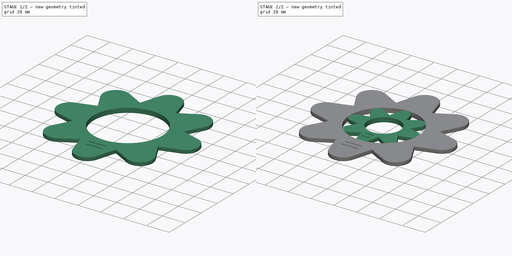
[diagram: build sequence overview — one tinted view per stage of 2, left to right]
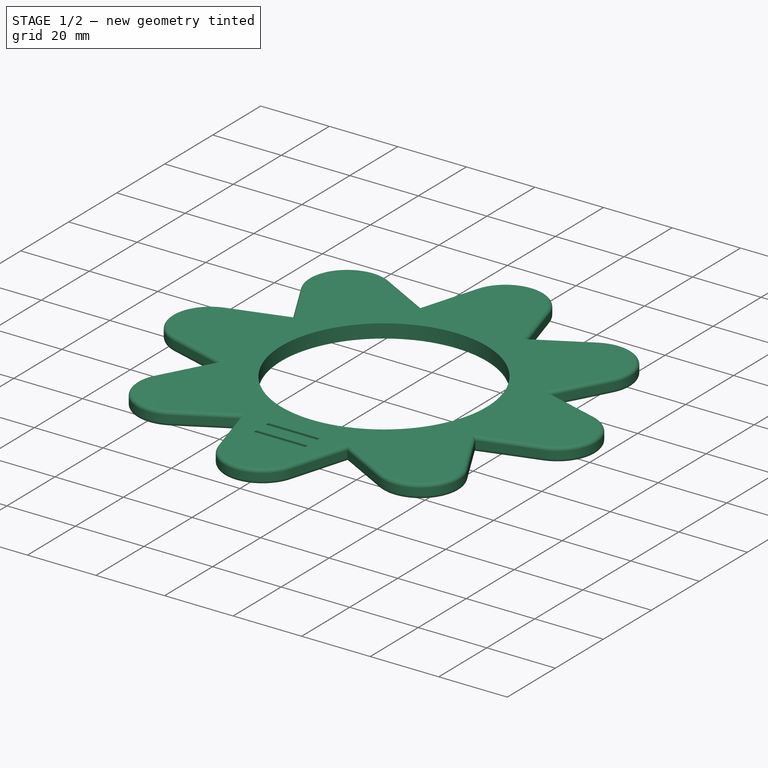
[diagram: stage 1 of 2 — iso view after this stage's code; geometry added in this stage tinted green]
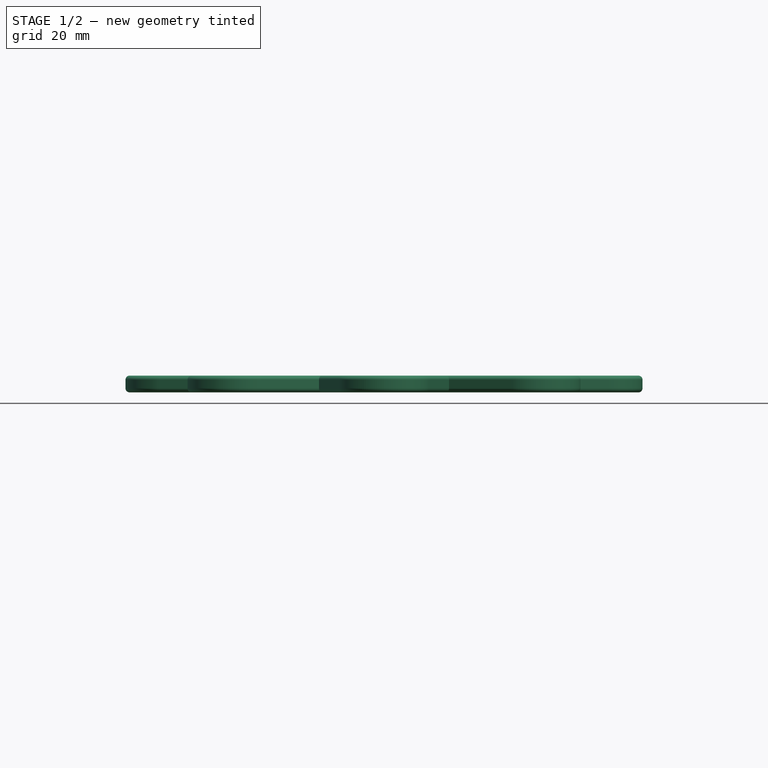
[diagram: stage 1 of 2 — front view after this stage's code; geometry added in this stage tinted green]
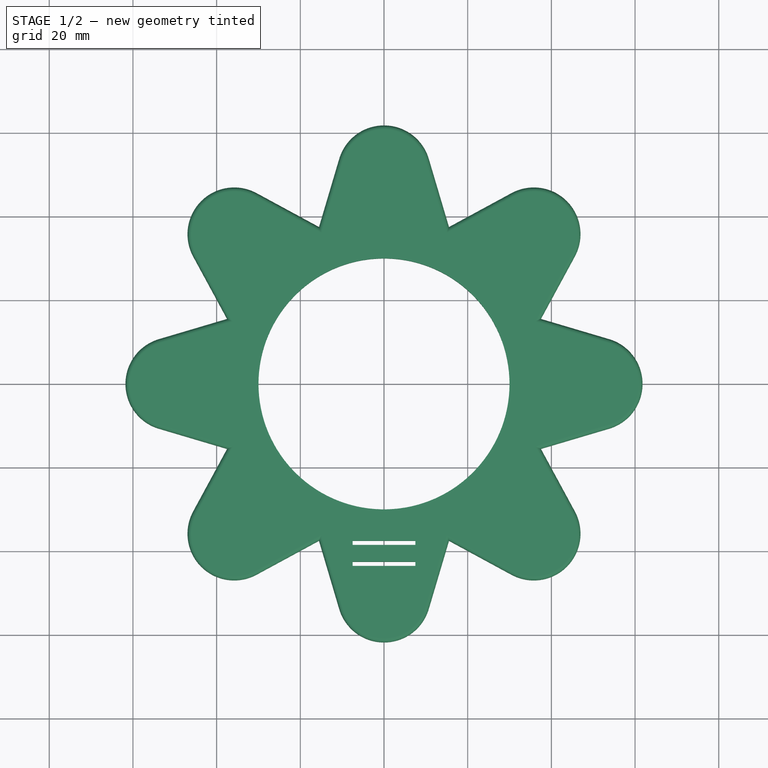
[diagram: stage 1 of 2 — top view after this stage's code; geometry added in this stage tinted green]
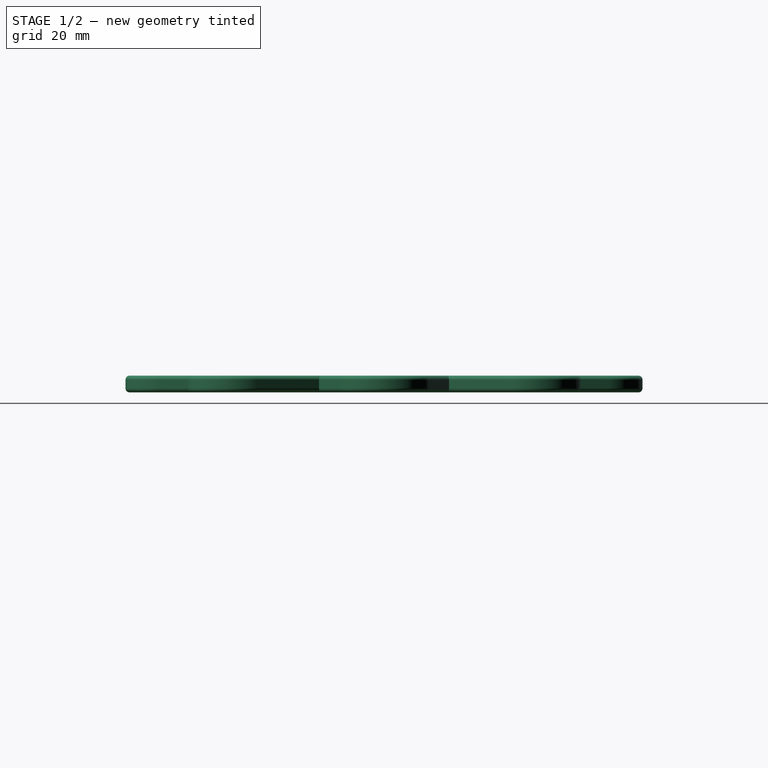
[diagram: stage 1 of 2 — right view after this stage's code; geometry added in this stage tinted green]
FCSTD DOCUMENT  (FreeCAD 0.21R33771 (Git))
Label: BowMaker
License: All rights reserved
LicenseURL: https://en.wikipedia.org/wiki/All_rights_reserved
objects: Sketcher::SketchObject×2, PartDesign::Pad×2, PartDesign::Fillet×2, PartDesign::Body×2
note: 12 computed .brp shape members not serialized (recipe doc carries the construction recipe); baked Part::Feature solids carry a one-line shape summary decoded from their .brp

FEATURE [PartDesign::Body] Body  label="BowMaker_7mm"
  Group = -> [Sketch,Pad,Fillet]
  Origin = -> Origin
  Tip = -> Fillet
FEATURE [Sketcher::SketchObject] Sketch001
  FullyConstrained = true
  MapMode = 5
  Support = -> [XY_Plane001]
  expr: Constraints[137] = .Constraints.PaperSize + 2 mm
  expr: Constraints[140] = .Constraints.PaperSize / 2
  expr: Constraints[150] = .Constraints.PaperSize * 4
  sketch-geometry (61):
    g0: LineSegment StartX=-7.5 StartY=-38.5 StartZ=0 EndX=7.5 EndY=-38.5 EndZ=0
    g1: LineSegment StartX=7.5 StartY=-38.5 StartZ=0 EndX=7.5 EndY=-37.5 EndZ=0
    g2: LineSegment StartX=7.5 StartY=-37.5 StartZ=0 EndX=-7.5 EndY=-37.5 EndZ=0
    g3: LineSegment StartX=-7.5 StartY=-37.5 StartZ=0 EndX=-7.5 EndY=-38.5 EndZ=0
    g4: LineSegment StartX=-7.5 StartY=-42.5 StartZ=0 EndX=7.5 EndY=-42.5 EndZ=0
    g5: LineSegment StartX=7.5 StartY=-42.5 StartZ=0 EndX=7.5 EndY=-43.5 EndZ=0
    g6: LineSegment StartX=7.5 StartY=-43.5 StartZ=0 EndX=-7.5 EndY=-43.5 EndZ=0
    g7: LineSegment StartX=-7.5 StartY=-43.5 StartZ=0 EndX=-7.5 EndY=-42.5 EndZ=0
    g8: LineSegment StartX=15.533 StartY=37.5 StartZ=0 EndX=-15.533 EndY=37.5 EndZ=0
    g9: LineSegment StartX=-15.533 StartY=37.5 StartZ=0 EndX=-37.5 EndY=15.533 EndZ=0
    g10: LineSegment StartX=-37.5 StartY=15.533 StartZ=0 EndX=-37.5 EndY=-15.533 EndZ=0
    g11: LineSegment StartX=-37.5 StartY=-15.533 StartZ=0 EndX=-15.533 EndY=-37.5 EndZ=0
    g12: LineSegment StartX=-15.533 StartY=-37.5 StartZ=0 EndX=15.533 EndY=-37.5 EndZ=0
    g13: LineSegment StartX=15.533 StartY=-37.5 StartZ=0 EndX=37.5 EndY=-15.533 EndZ=0
    g14: LineSegment StartX=37.5 StartY=-15.533 StartZ=0 EndX=37.5 EndY=15.533 EndZ=0
    g15: LineSegment StartX=37.5 StartY=15.533 StartZ=0 EndX=15.533 EndY=37.5 EndZ=0
    g16: Circle CenterX=0 CenterY=0 CenterZ=0 NormalX=0 NormalY=0 NormalZ=1 AngleXU=0 Radius=40.5897
    g17: GeomPoint X=37.5 Y=0 Z=0
    g18: LineSegment StartX=53.7989 StartY=-10.7013 StartZ=0 EndX=53.7989 EndY=10.7013 EndZ=0
    g19: LineSegment StartX=53.7989 StartY=10.7013 StartZ=0 EndX=45.6085 EndY=30.4746 EndZ=0
    g20: LineSegment StartX=45.6085 StartY=30.4746 StartZ=0 EndX=30.4746 EndY=45.6085 EndZ=0
    g21: LineSegment StartX=30.4746 StartY=45.6085 StartZ=0 EndX=10.7013 EndY=53.7989 EndZ=0
    g22: LineSegment StartX=10.7013 StartY=53.7989 StartZ=0 EndX=-10.7013 EndY=53.7989 EndZ=0
    g23: LineSegment StartX=-10.7013 StartY=53.7989 StartZ=0 EndX=-30.4746 EndY=45.6085 EndZ=0
    g24: LineSegment StartX=-30.4746 StartY=45.6085 StartZ=0 EndX=-45.6085 EndY=30.4746 EndZ=0
    g25: LineSegment StartX=-45.6085 StartY=30.4746 StartZ=0 EndX=-53.7989 EndY=10.7013 EndZ=0
    g26: LineSegment StartX=-53.7989 StartY=10.7013 StartZ=0 EndX=-53.7989 EndY=-10.7013 EndZ=0
    g27: LineSegment StartX=-53.7989 StartY=-10.7013 StartZ=0 EndX=-45.6085 EndY=-30.4746 EndZ=0
    g28: LineSegment StartX=-45.6085 StartY=-30.4746 StartZ=0 EndX=-30.4746 EndY=-45.6085 EndZ=0
    g29: LineSegment StartX=-30.4746 StartY=-45.6085 StartZ=0 EndX=-10.7013 EndY=-53.7989 EndZ=0
    g30: LineSegment StartX=-10.7013 StartY=-53.7989 StartZ=0 EndX=10.7013 EndY=-53.7989 EndZ=0
    g31: LineSegment StartX=10.7013 StartY=-53.7989 StartZ=0 EndX=30.4746 EndY=-45.6085 EndZ=0
    g32: LineSegment StartX=30.4746 StartY=-45.6085 StartZ=0 EndX=45.6085 EndY=-30.4746 EndZ=0
    g33: LineSegment StartX=45.6085 StartY=-30.4746 StartZ=0 EndX=53.7989 EndY=-10.7013 EndZ=0
    g34: Circle CenterX=0 CenterY=0 CenterZ=0 NormalX=0 NormalY=0 NormalZ=1 AngleXU=0 Radius=54.8529
    g35: ArcOfCircle CenterX=35.7984 CenterY=35.7984 CenterZ=0 NormalX=0 NormalY=0 NormalZ=1 AngleXU=0 Radius=11.1616 StartAngle=5.78598 EndAngle=8.35119
    g36: ArcOfCircle CenterX=50.6266 CenterY=1.8e-15 CenterZ=0 NormalX=0 NormalY=0 NormalZ=1 AngleXU=0 Radius=11.1616 StartAngle=5.00058 EndAngle=7.56579
    g37: ArcOfCircle CenterX=35.7984 CenterY=-35.7984 CenterZ=0 NormalX=0 NormalY=0 NormalZ=1 AngleXU=0 Radius=11.1616 StartAngle=4.21518 EndAngle=6.78039
    g38: ArcOfCircle CenterX=-1.4e-15 CenterY=-50.6266 CenterZ=0 NormalX=0 NormalY=0 NormalZ=1 AngleXU=0 Radius=11.1616 StartAngle=3.42979 EndAngle=5.99499
    g39: ArcOfCircle CenterX=-35.7984 CenterY=-35.7984 CenterZ=0 NormalX=0 NormalY=0 NormalZ=1 AngleXU=0 Radius=11.1616 StartAngle=2.64439 EndAngle=5.20959
    g40: ArcOfCircle CenterX=-50.6266 CenterY=-1.13e-14 CenterZ=0 NormalX=0 NormalY=0 NormalZ=1 AngleXU=0 Radius=11.1616 StartAngle=1.85899 EndAngle=4.4242
    g41: ArcOfCircle CenterX=-35.7984 CenterY=35.7984 CenterZ=0 NormalX=0 NormalY=0 NormalZ=1 AngleXU=0 Radius=11.1616 StartAngle=1.07359 EndAngle=3.6388
    g42: ArcOfCircle CenterX=-6.2e-15 CenterY=50.6266 CenterZ=0 NormalX=0 NormalY=0 NormalZ=1 AngleXU=0 Radius=11.1616 StartAngle=0.288193 EndAngle=2.8534
    g43: LineSegment StartX=37.5 StartY=15.533 StartZ=0 EndX=53.7989 EndY=10.7013 EndZ=0
    g44: LineSegment StartX=53.7989 StartY=-10.7013 StartZ=0 EndX=37.5 EndY=-15.533 EndZ=0
    g45: LineSegment StartX=37.5 StartY=-15.533 StartZ=0 EndX=45.6085 EndY=-30.4746 EndZ=0
    g46: LineSegment StartX=30.4746 StartY=-45.6085 StartZ=0 EndX=15.533 EndY=-37.5 EndZ=0
    g47: LineSegment StartX=15.533 StartY=-37.5 StartZ=0 EndX=10.7013 EndY=-53.7989 EndZ=0
    g48: LineSegment StartX=-10.7013 StartY=-53.7989 StartZ=0 EndX=-15.533 EndY=-37.5 EndZ=0
    g49: LineSegment StartX=-15.533 StartY=-37.5 StartZ=0 EndX=-30.4746 EndY=-45.6085 EndZ=0
    g50: LineSegment StartX=-45.6085 StartY=-30.4746 StartZ=0 EndX=-37.5 EndY=-15.533 EndZ=0
    g51: LineSegment StartX=-37.5 StartY=-15.533 StartZ=0 EndX=-53.7989 EndY=-10.7013 EndZ=0
    g52: LineSegment StartX=-53.7989 StartY=10.7013 StartZ=0 EndX=-37.5 EndY=15.533 EndZ=0
    g53: LineSegment StartX=-37.5 StartY=15.533 StartZ=0 EndX=-45.6085 EndY=30.4746 EndZ=0
    g54: LineSegment StartX=-30.4746 StartY=45.6085 StartZ=0 EndX=-15.533 EndY=37.5 EndZ=0
    g55: LineSegment StartX=-10.7013 StartY=53.7989 StartZ=0 EndX=-15.533 EndY=37.5 EndZ=0
    g56: LineSegment StartX=10.7013 StartY=53.7989 StartZ=0 EndX=15.533 EndY=37.5 EndZ=0
    g57: LineSegment StartX=15.533 StartY=37.5 StartZ=0 EndX=30.4746 EndY=45.6085 EndZ=0
    g58: LineSegment StartX=45.6085 StartY=30.4746 StartZ=0 EndX=37.5 EndY=15.533 EndZ=0
    g59: Circle CenterX=0 CenterY=0 CenterZ=0 NormalX=0 NormalY=0 NormalZ=1 AngleXU=0 Radius=30
    g60: GeomPoint X=0 Y=-30 Z=0
  constraints (131):
    c: Coincident(g0,g1)
    c: Coincident(g1,g2)
    c: Coincident(g2,g3)
    c: Coincident(g3,g0)
    c: Horizontal(g2)
    c: Vertical(g1)
    c: Vertical(g3)
    c: Coincident(g4,g5)
    c: Coincident(g5,g6)
    c: Coincident(g6,g7)
    c: Coincident(g7,g4)
    c: Horizontal(g4)
    c: Horizontal(g6)
    c: Vertical(g5)
    c: Vertical(g7)
    c: Vertical(g4,g1)
    c: Symmetric(g0,g0,g-2)
    c: Vertical(g4,g2)
    c: Equal(g7,g3)
    c: DistanceY(g5,g4) = 1
    c: DistanceX(g0,g0) = 15  'PaperSize'
    c: Coincident(g8,g9)
    c: Coincident(g9,g10)
    c: Coincident(g10,g11)
    c: Coincident(g11,g12)
    c: Coincident(g12,g13)
    c: Coincident(g13,g14)
    c: Coincident(g14,g15)
    c: Coincident(g15,g8)
    c: Equal(g8, g9-g15) x7
    c: PointOnObject(g8,g16)
    c: PointOnObject(g9,g16)
    c: PointOnObject(g10,g16)
    c: PointOnObject(g11,g16)
    c: PointOnObject(g12,g16)
    c: PointOnObject(g13,g16)
    c: PointOnObject(g14,g16)
    c: PointOnObject(g15,g16)
    c: Symmetric(g13,g14,g17)
    c: PointOnObject(g17,g-1)
    c: Coincident(g16,g-1)
    c: Coincident(g18,g19)
    c: Coincident(g19,g20)
    c: Coincident(g20,g21)
    c: Coincident(g21,g22)
    c: Coincident(g22,g23)
    c: Coincident(g23,g24)
    c: Coincident(g24,g25)
    c: Coincident(g25,g26)
    c: Coincident(g26,g27)
    c: Coincident(g27,g28)
    c: Coincident(g28,g29)
    c: Coincident(g29,g30)
    c: Coincident(g30,g31)
    c: Coincident(g31,g32)
    c: Coincident(g32,g33)
    c: Coincident(g33,g18)
    c: Equal(g18, g19-g33) x15
    c: PointOnObject(g18,g34)
    c: PointOnObject(g19,g34)
    c: PointOnObject(g20,g34)
    c: PointOnObject(g21,g34)
    c: PointOnObject(g22,g34)
    c: PointOnObject(g23,g34)
    c: PointOnObject(g24,g34)
    c: PointOnObject(g25,g34)
    c: PointOnObject(g26,g34)
    c: PointOnObject(g29,g34)
    c: PointOnObject(g30,g34)
    c: PointOnObject(g31,g34)
    c: PointOnObject(g32,g34)
    c: PointOnObject(g33,g34)
    c: Coincident(g34,g16)
    c: Coincident(g35,g20)
    c: Coincident(g35,g19)
    c: Coincident(g36,g18)
    c: Coincident(g36,g18)
    c: Coincident(g37,g32)
    c: Coincident(g37,g31)
    c: Coincident(g38,g30)
    c: Coincident(g38,g29)
    c: Coincident(g39,g28)
    c: Coincident(g39,g27)
    c: Coincident(g40,g26)
    c: Coincident(g40,g25)
    c: Coincident(g41,g24)
    c: Coincident(g41,g23)
    c: Coincident(g42,g22)
    c: Coincident(g42,g21)
    c: Equal(g36,g37)
    c: Equal(g37,g38)
    c: Coincident(g43,g14)
    c: Coincident(g43,g36)
    c: Coincident(g44,g36)
    c: Coincident(g44,g13)
    c: Coincident(g45,g44)
    c: Coincident(g45,g37)
    c: Coincident(g46,g37)
    c: Coincident(g46,g12)
    c: Coincident(g47,g46)
    c: Coincident(g48,g11)
    c: Coincident(g49,g48)
    c: Coincident(g50,g10)
    c: Coincident(g51,g10)
    c: Coincident(g52,g40)
    c: Coincident(g52,g9)
    c: Coincident(g53,g52)
    c: Coincident(g54,g8)
    c: Coincident(g55,g54)
    c: Coincident(g56,g42)
    c: Coincident(g56,g8)
    c: Coincident(g57,g56)
    c: Coincident(g58,g35)
    c: Coincident(g58,g43)
    c: Tangent(g48,g38) = 1.5708
    c: Tangent(g47,g38) = 1.5708
    c: Coincident(g59,g16)
    c: Distance(g38,g48) = 17
    c: PointOnObject(g60,g-2)
    c: PointOnObject(g60,g59)
    c: DistanceY(g1,g60) = 7.5
    c: PointOnObject(g2,g12)
    c: DistanceY(g4,g0) = 4
    c: Tangent(g49,g39) = 1.5708
    c: Tangent(g50,g39) = 1.5708
    c: Tangent(g53,g41) = 1.5708
    c: Tangent(g54,g41) = 1.5708
    c: Tangent(g51,g40) = 1.5708
    c: Tangent(g55,g42) = -1.5708
    c: Tangent(g57,g35) = 1.5708
    c: Diameter(g59) = 60
FEATURE [PartDesign::Pad] Pad001
  Direction = (0,0,1)
  Length = 4
  Length2 = 10
  Profile = -> Sketch001
  ReferenceAxis = -> Sketch001 [N_Axis]
  Type = 0
FEATURE [PartDesign::Fillet] Fillet001
  Base = -> Pad001 [Edge49,Edge46,Edge43,Edge40,Edge37,Edge34,Edge31,Edge28,Edge25,Edge22,Edge19,Edge16,Edge13,Edge10,Edge7,Edge4,Edge72,Edge70,Edge67,Edge64,Edge61,Edge58,Edge55,Edge52,Edge21,Edge24,Edge27,Edge30,Edge33,Edge36,Edge39,Edge42,Edge45,Edge48,Edge51,Edge54,Edge57,Edge60,Edge63,Edge66,+8 more]
  BaseFeature = -> Pad001
  Radius = 1
  SupportTransform = false
  UseAllEdges = false
FEATURE [PartDesign::Body] Body001  label="BowMaker_15mm"
  Group = -> [Sketch001,Pad001,Fillet001]
  Origin = -> Origin001
  Tip = -> Fillet001
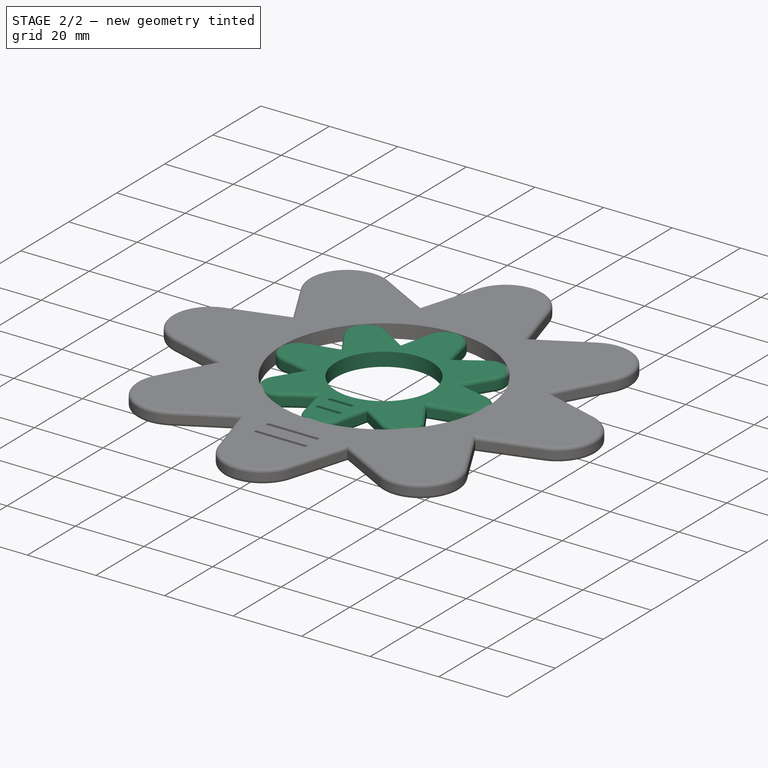
[diagram: stage 2 of 2 — iso view after this stage's code; geometry added in this stage tinted green]
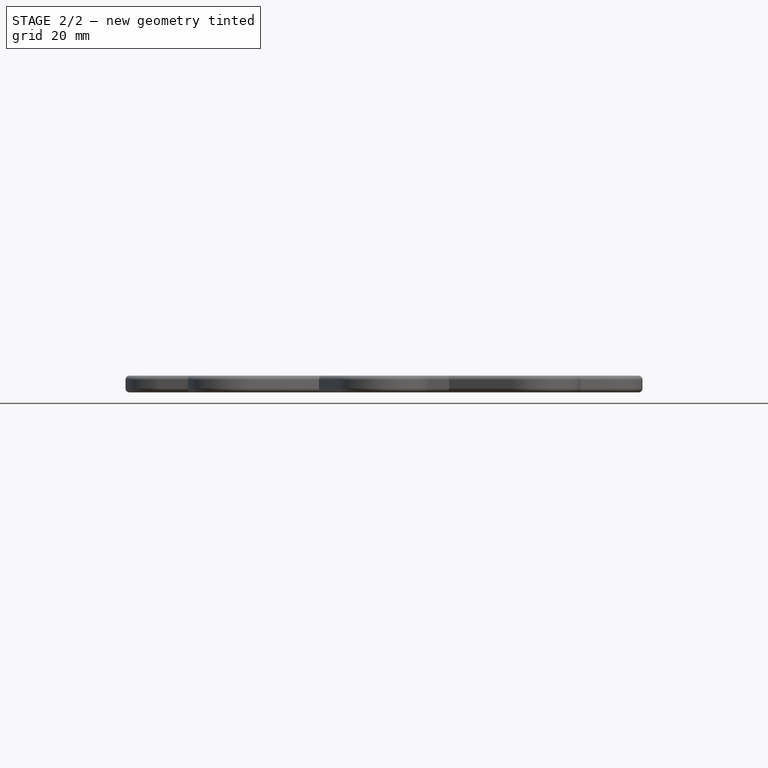
[diagram: stage 2 of 2 — front view after this stage's code; geometry added in this stage tinted green]
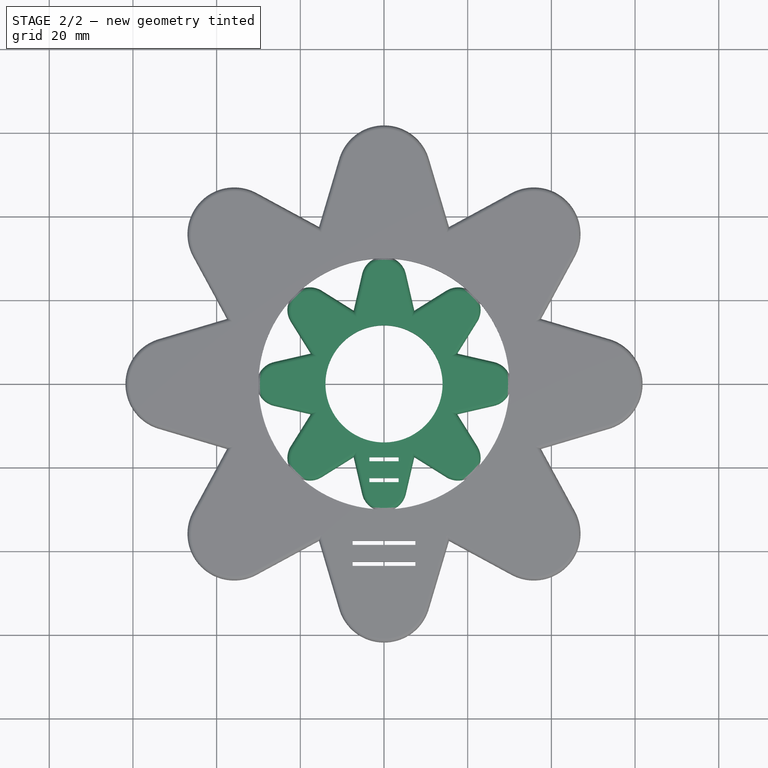
[diagram: stage 2 of 2 — top view after this stage's code; geometry added in this stage tinted green]
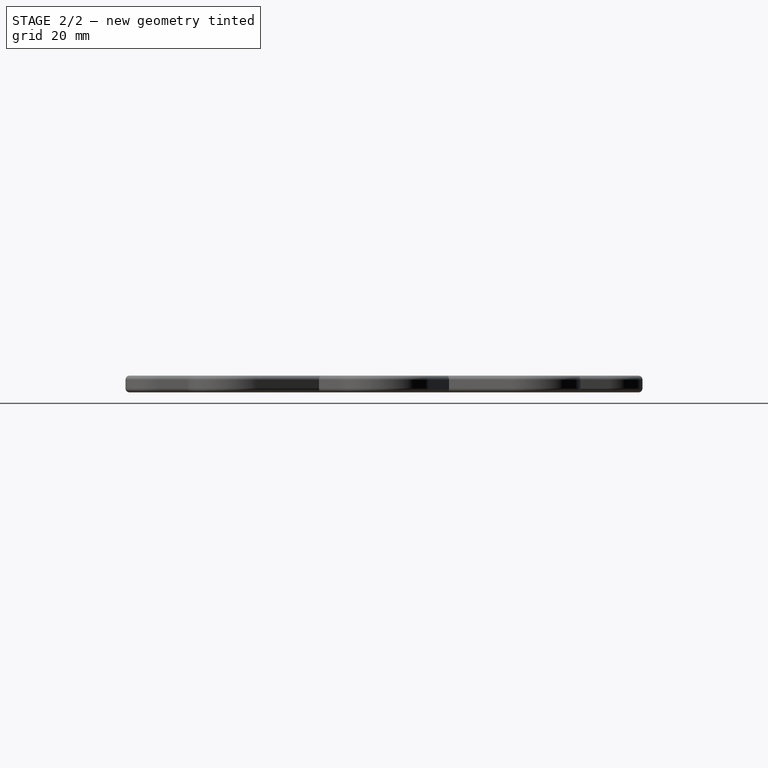
[diagram: stage 2 of 2 — right view after this stage's code; geometry added in this stage tinted green]
FEATURE [Sketcher::SketchObject] Sketch
  FullyConstrained = true
  MapMode = 5
  Support = -> [XY_Plane]
  expr: Constraints[137] = .Constraints.PaperSize + 2 mm
  expr: Constraints[140] = .Constraints.PaperSize / 2
  expr: Constraints[150] = .Constraints.PaperSize * 4
  sketch-geometry (61):
    g0: LineSegment StartX=-3.5 StartY=-18.5 StartZ=0 EndX=3.5 EndY=-18.5 EndZ=0
    g1: LineSegment StartX=3.5 StartY=-18.5 StartZ=0 EndX=3.5 EndY=-17.5 EndZ=0
    g2: LineSegment StartX=3.5 StartY=-17.5 StartZ=0 EndX=-3.5 EndY=-17.5 EndZ=0
    g3: LineSegment StartX=-3.5 StartY=-17.5 StartZ=0 EndX=-3.5 EndY=-18.5 EndZ=0
    g4: LineSegment StartX=-3.5 StartY=-22.5 StartZ=0 EndX=3.5 EndY=-22.5 EndZ=0
    g5: LineSegment StartX=3.5 StartY=-22.5 StartZ=0 EndX=3.5 EndY=-23.5 EndZ=0
    g6: LineSegment StartX=3.5 StartY=-23.5 StartZ=0 EndX=-3.5 EndY=-23.5 EndZ=0
    g7: LineSegment StartX=-3.5 StartY=-23.5 StartZ=0 EndX=-3.5 EndY=-22.5 EndZ=0
    g8: LineSegment StartX=7.24874 StartY=17.5 StartZ=0 EndX=-7.24874 EndY=17.5 EndZ=0
    g9: LineSegment StartX=-7.24874 StartY=17.5 StartZ=0 EndX=-17.5 EndY=7.24874 EndZ=0
    g10: LineSegment StartX=-17.5 StartY=7.24874 StartZ=0 EndX=-17.5 EndY=-7.24874 EndZ=0
    g11: LineSegment StartX=-17.5 StartY=-7.24874 StartZ=0 EndX=-7.24874 EndY=-17.5 EndZ=0
    g12: LineSegment StartX=-7.24874 StartY=-17.5 StartZ=0 EndX=7.24874 EndY=-17.5 EndZ=0
    g13: LineSegment StartX=7.24874 StartY=-17.5 StartZ=0 EndX=17.5 EndY=-7.24874 EndZ=0
    g14: LineSegment StartX=17.5 StartY=-7.24874 StartZ=0 EndX=17.5 EndY=7.24874 EndZ=0
    g15: LineSegment StartX=17.5 StartY=7.24874 StartZ=0 EndX=7.24874 EndY=17.5 EndZ=0
    g16: Circle CenterX=0 CenterY=0 CenterZ=0 NormalX=0 NormalY=0 NormalZ=1 AngleXU=0 Radius=18.9419
    g17: GeomPoint X=17.5 Y=0 Z=0
    g18: LineSegment StartX=26.2696 StartY=-5.22535 StartZ=0 EndX=26.2696 EndY=5.22535 EndZ=0
    g19: LineSegment StartX=26.2696 StartY=5.22535 StartZ=0 EndX=22.2703 EndY=14.8805 EndZ=0
    g20: LineSegment StartX=22.2703 StartY=14.8805 StartZ=0 EndX=14.8805 EndY=22.2703 EndZ=0
    g21: LineSegment StartX=14.8805 StartY=22.2703 StartZ=0 EndX=5.22535 EndY=26.2696 EndZ=0
    g22: LineSegment StartX=5.22535 StartY=26.2696 StartZ=0 EndX=-5.22535 EndY=26.2696 EndZ=0
    g23: LineSegment StartX=-5.22535 StartY=26.2696 StartZ=0 EndX=-14.8805 EndY=22.2703 EndZ=0
    g24: LineSegment StartX=-14.8805 StartY=22.2703 StartZ=0 EndX=-22.2703 EndY=14.8805 EndZ=0
    g25: LineSegment StartX=-22.2703 StartY=14.8805 StartZ=0 EndX=-26.2696 EndY=5.22535 EndZ=0
    g26: LineSegment StartX=-26.2696 StartY=5.22535 StartZ=0 EndX=-26.2696 EndY=-5.22535 EndZ=0
    g27: LineSegment StartX=-26.2696 StartY=-5.22535 StartZ=0 EndX=-22.2703 EndY=-14.8805 EndZ=0
    g28: LineSegment StartX=-22.2703 StartY=-14.8805 StartZ=0 EndX=-14.8805 EndY=-22.2703 EndZ=0
    g29: LineSegment StartX=-14.8805 StartY=-22.2703 StartZ=0 EndX=-5.22535 EndY=-26.2696 EndZ=0
    g30: LineSegment StartX=-5.22535 StartY=-26.2696 StartZ=0 EndX=5.22535 EndY=-26.2696 EndZ=0
    g31: LineSegment StartX=5.22535 StartY=-26.2696 StartZ=0 EndX=14.8805 EndY=-22.2703 EndZ=0
    g32: LineSegment StartX=14.8805 StartY=-22.2703 StartZ=0 EndX=22.2703 EndY=-14.8805 EndZ=0
    g33: LineSegment StartX=22.2703 StartY=-14.8805 StartZ=0 EndX=26.2696 EndY=-5.22535 EndZ=0
    g34: Circle CenterX=0 CenterY=0 CenterZ=0 NormalX=0 NormalY=0 NormalZ=1 AngleXU=0 Radius=26.7843
    g35: ArcOfCircle CenterX=17.7229 CenterY=17.7229 CenterZ=0 NormalX=0 NormalY=0 NormalZ=1 AngleXU=0 Radius=5.36263 StartAngle=5.72455 EndAngle=8.41262
    g36: ArcOfCircle CenterX=25.064 CenterY=-9e-16 CenterZ=0 NormalX=0 NormalY=0 NormalZ=1 AngleXU=0 Radius=5.36263 StartAngle=4.93915 EndAngle=7.62722
    g37: ArcOfCircle CenterX=17.7229 CenterY=-17.7229 CenterZ=0 NormalX=0 NormalY=0 NormalZ=1 AngleXU=0 Radius=5.36263 StartAngle=4.15375 EndAngle=6.84182
    g38: ArcOfCircle CenterX=-2e-15 CenterY=-25.064 CenterZ=0 NormalX=0 NormalY=0 NormalZ=1 AngleXU=0 Radius=5.36263 StartAngle=3.36835 EndAngle=6.05643
    g39: ArcOfCircle CenterX=-17.7229 CenterY=-17.7229 CenterZ=0 NormalX=0 NormalY=0 NormalZ=1 AngleXU=0 Radius=5.36263 StartAngle=2.58295 EndAngle=5.27103
    g40: ArcOfCircle CenterX=-25.064 CenterY=-2.9e-15 CenterZ=0 NormalX=0 NormalY=0 NormalZ=1 AngleXU=0 Radius=5.36263 StartAngle=1.79756 EndAngle=4.48563
    g41: ArcOfCircle CenterX=-17.7229 CenterY=17.7229 CenterZ=0 NormalX=0 NormalY=0 NormalZ=1 AngleXU=0 Radius=5.36263 StartAngle=1.01216 EndAngle=3.70023
    g42: ArcOfCircle CenterX=-1.8e-15 CenterY=25.064 CenterZ=0 NormalX=0 NormalY=0 NormalZ=1 AngleXU=0 Radius=5.36263 StartAngle=0.226759 EndAngle=2.91483
    g43: LineSegment StartX=17.5 StartY=7.24874 StartZ=0 EndX=26.2696 EndY=5.22535 EndZ=0
    g44: LineSegment StartX=26.2696 StartY=-5.22535 StartZ=0 EndX=17.5 EndY=-7.24874 EndZ=0
    g45: LineSegment StartX=17.5 StartY=-7.24874 StartZ=0 EndX=22.2703 EndY=-14.8805 EndZ=0
    g46: LineSegment StartX=14.8805 StartY=-22.2703 StartZ=0 EndX=7.24874 EndY=-17.5 EndZ=0
    g47: LineSegment StartX=7.24874 StartY=-17.5 StartZ=0 EndX=5.22535 EndY=-26.2696 EndZ=0
    g48: LineSegment StartX=-5.22535 StartY=-26.2696 StartZ=0 EndX=-7.24874 EndY=-17.5 EndZ=0
    g49: LineSegment StartX=-7.24874 StartY=-17.5 StartZ=0 EndX=-14.8805 EndY=-22.2703 EndZ=0
    g50: LineSegment StartX=-22.2703 StartY=-14.8805 StartZ=0 EndX=-17.5 EndY=-7.24874 EndZ=0
    g51: LineSegment StartX=-17.5 StartY=-7.24874 StartZ=0 EndX=-26.2696 EndY=-5.22535 EndZ=0
    g52: LineSegment StartX=-26.2696 StartY=5.22535 StartZ=0 EndX=-17.5 EndY=7.24874 EndZ=0
    g53: LineSegment StartX=-17.5 StartY=7.24874 StartZ=0 EndX=-22.2703 EndY=14.8805 EndZ=0
    g54: LineSegment StartX=-14.8805 StartY=22.2703 StartZ=0 EndX=-7.24874 EndY=17.5 EndZ=0
    g55: LineSegment StartX=-5.22535 StartY=26.2696 StartZ=0 EndX=-7.24874 EndY=17.5 EndZ=0
    g56: LineSegment StartX=5.22535 StartY=26.2696 StartZ=0 EndX=7.24874 EndY=17.5 EndZ=0
    g57: LineSegment StartX=7.24874 StartY=17.5 StartZ=0 EndX=14.8805 EndY=22.2703 EndZ=0
    g58: LineSegment StartX=22.2703 StartY=14.8805 StartZ=0 EndX=17.5 EndY=7.24874 EndZ=0
    g59: Circle CenterX=0 CenterY=0 CenterZ=0 NormalX=0 NormalY=0 NormalZ=1 AngleXU=0 Radius=14
    g60: GeomPoint X=0 Y=-14 Z=0
  constraints (131):
    c: Coincident(g0,g1)
    c: Coincident(g1,g2)
    c: Coincident(g2,g3)
    c: Coincident(g3,g0)
    c: Horizontal(g2)
    c: Vertical(g1)
    c: Vertical(g3)
    c: Coincident(g4,g5)
    c: Coincident(g5,g6)
    c: Coincident(g6,g7)
    c: Coincident(g7,g4)
    c: Horizontal(g4)
    c: Horizontal(g6)
    c: Vertical(g5)
    c: Vertical(g7)
    c: Vertical(g4,g1)
    c: Symmetric(g0,g0,g-2)
    c: Vertical(g4,g2)
    c: Equal(g7,g3)
    c: DistanceY(g5,g4) = 1
    c: DistanceX(g0,g0) = 7  'PaperSize'
    c: Coincident(g8,g9)
    c: Coincident(g9,g10)
    c: Coincident(g10,g11)
    c: Coincident(g11,g12)
    c: Coincident(g12,g13)
    c: Coincident(g13,g14)
    c: Coincident(g14,g15)
    c: Coincident(g15,g8)
    c: Equal(g8, g9-g15) x7
    c: PointOnObject(g8,g16)
    c: PointOnObject(g9,g16)
    c: PointOnObject(g10,g16)
    c: PointOnObject(g11,g16)
    c: PointOnObject(g12,g16)
    c: PointOnObject(g13,g16)
    c: PointOnObject(g14,g16)
    c: PointOnObject(g15,g16)
    c: Symmetric(g13,g14,g17)
    c: PointOnObject(g17,g-1)
    c: Coincident(g16,g-1)
    c: Coincident(g18,g19)
    c: Coincident(g19,g20)
    c: Coincident(g20,g21)
    c: Coincident(g21,g22)
    c: Coincident(g22,g23)
    c: Coincident(g23,g24)
    c: Coincident(g24,g25)
    c: Coincident(g25,g26)
    c: Coincident(g26,g27)
    c: Coincident(g27,g28)
    c: Coincident(g28,g29)
    c: Coincident(g29,g30)
    c: Coincident(g30,g31)
    c: Coincident(g31,g32)
    c: Coincident(g32,g33)
    c: Coincident(g33,g18)
    c: Equal(g18, g19-g33) x15
    c: PointOnObject(g18,g34)
    c: PointOnObject(g19,g34)
    c: PointOnObject(g20,g34)
    c: PointOnObject(g21,g34)
    c: PointOnObject(g22,g34)
    c: PointOnObject(g23,g34)
    c: PointOnObject(g24,g34)
    c: PointOnObject(g25,g34)
    c: PointOnObject(g26,g34)
    c: PointOnObject(g29,g34)
    c: PointOnObject(g30,g34)
    c: PointOnObject(g31,g34)
    c: PointOnObject(g32,g34)
    c: PointOnObject(g33,g34)
    c: Coincident(g34,g16)
    c: Coincident(g35,g20)
    c: Coincident(g35,g19)
    c: Coincident(g36,g18)
    c: Coincident(g36,g18)
    c: Coincident(g37,g32)
    c: Coincident(g37,g31)
    c: Coincident(g38,g30)
    c: Coincident(g38,g29)
    c: Coincident(g39,g28)
    c: Coincident(g39,g27)
    c: Coincident(g40,g26)
    c: Coincident(g40,g25)
    c: Coincident(g41,g24)
    c: Coincident(g41,g23)
    c: Coincident(g42,g22)
    c: Coincident(g42,g21)
    c: Equal(g36,g37)
    c: Equal(g37,g38)
    c: Coincident(g43,g14)
    c: Coincident(g43,g36)
    c: Coincident(g44,g36)
    c: Coincident(g44,g13)
    c: Coincident(g45,g44)
    c: Coincident(g45,g37)
    c: Coincident(g46,g37)
    c: Coincident(g46,g12)
    c: Coincident(g47,g46)
    c: Coincident(g48,g11)
    c: Coincident(g49,g48)
    c: Coincident(g50,g10)
    c: Coincident(g51,g10)
    c: Coincident(g52,g40)
    c: Coincident(g52,g9)
    c: Coincident(g53,g52)
    c: Coincident(g54,g8)
    c: Coincident(g55,g54)
    c: Coincident(g56,g42)
    c: Coincident(g56,g8)
    c: Coincident(g57,g56)
    c: Coincident(g58,g35)
    c: Coincident(g58,g43)
    c: Tangent(g48,g38) = 1.5708
    c: Tangent(g47,g38) = 1.5708
    c: Coincident(g59,g16)
    c: Distance(g38,g48) = 9
    c: PointOnObject(g60,g-2)
    c: PointOnObject(g60,g59)
    c: DistanceY(g1,g60) = 3.5
    c: PointOnObject(g2,g12)
    c: DistanceY(g4,g0) = 4
    c: Tangent(g49,g39) = 1.5708
    c: Tangent(g50,g39) = 1.5708
    c: Tangent(g53,g41) = 1.5708
    c: Tangent(g54,g41) = 1.5708
    c: Tangent(g51,g40) = 1.5708
    c: Tangent(g55,g42) = -1.5708
    c: Tangent(g57,g35) = 1.5708
    c: Diameter(g59) = 28
FEATURE [PartDesign::Pad] Pad
  Direction = (0,0,1)
  Length = 4
  Length2 = 10
  Profile = -> Sketch
  ReferenceAxis = -> Sketch [N_Axis]
  Type = 0
FEATURE [PartDesign::Fillet] Fillet
  Base = -> Pad [Edge49,Edge46,Edge43,Edge40,Edge37,Edge34,Edge31,Edge28,Edge25,Edge22,Edge19,Edge16,Edge13,Edge10,Edge7,Edge4,Edge72,Edge70,Edge67,Edge64,Edge61,Edge58,Edge55,Edge52,Edge21,Edge24,Edge27,Edge30,Edge33,Edge36,Edge39,Edge42,Edge45,Edge48,Edge51,Edge54,Edge57,Edge60,Edge63,Edge66,+8 more]
  BaseFeature = -> Pad
  Radius = 1
  SupportTransform = false
  UseAllEdges = false
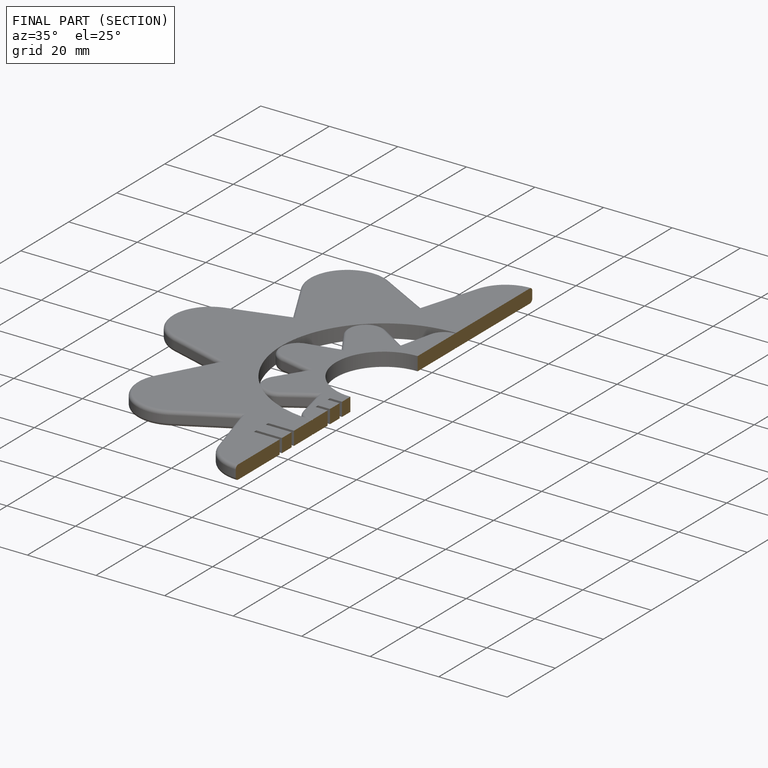
[diagram: finished part — half-section view (interior)]
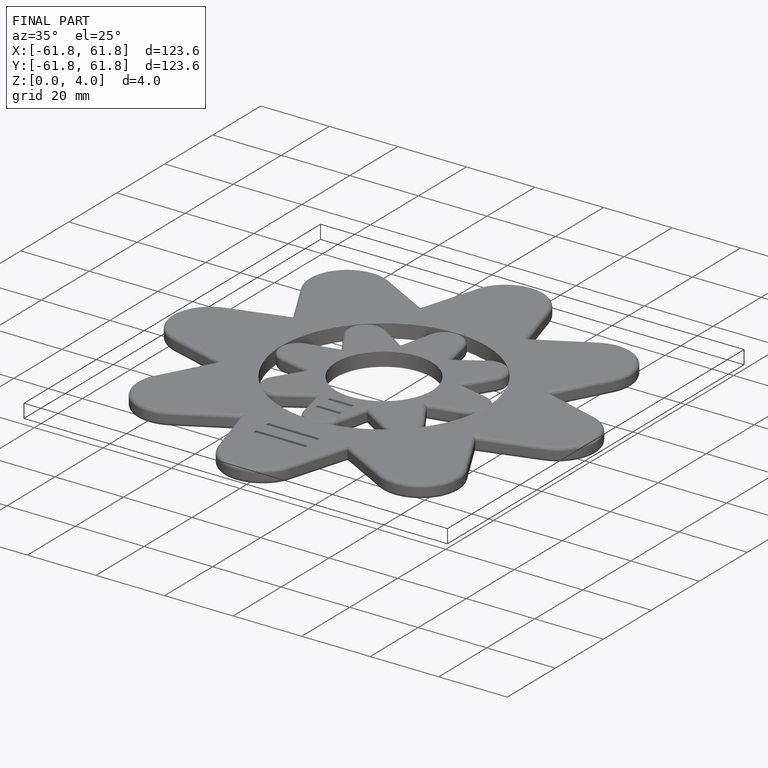
[diagram: finished part — iso view with bounding-box wireframe]
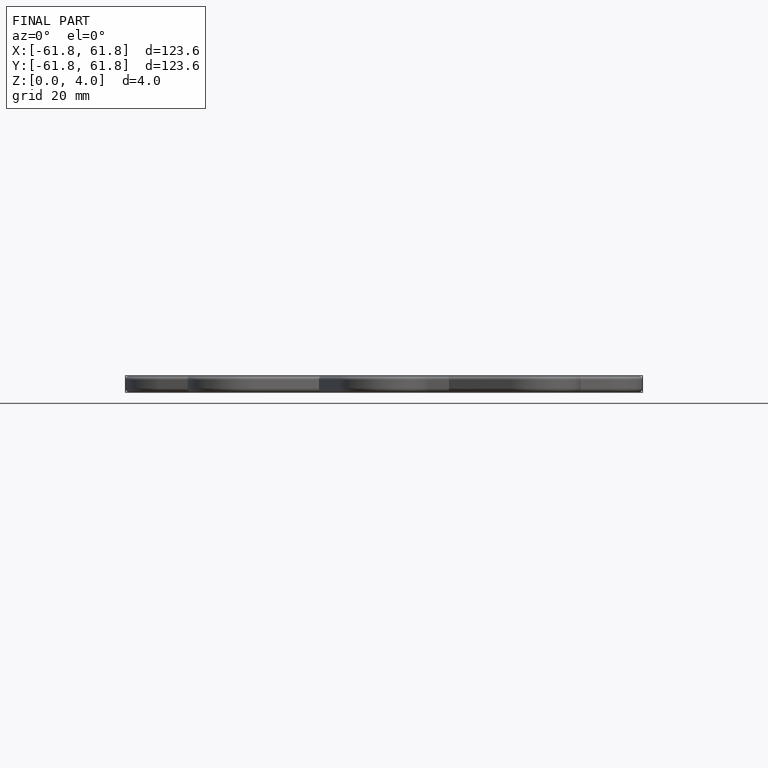
[diagram: finished part — front view with bounding-box wireframe]
